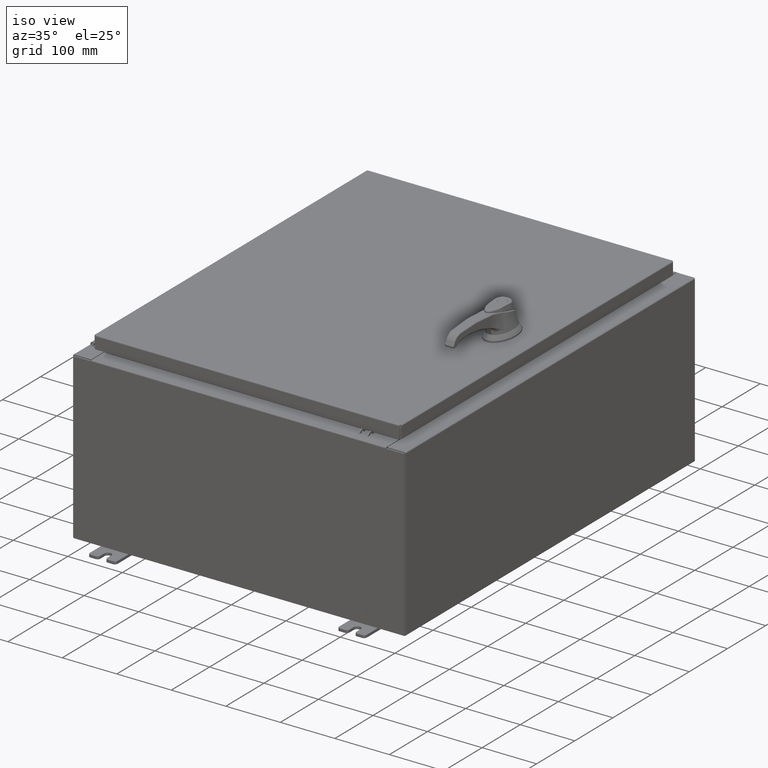
[diagram: clean part render]
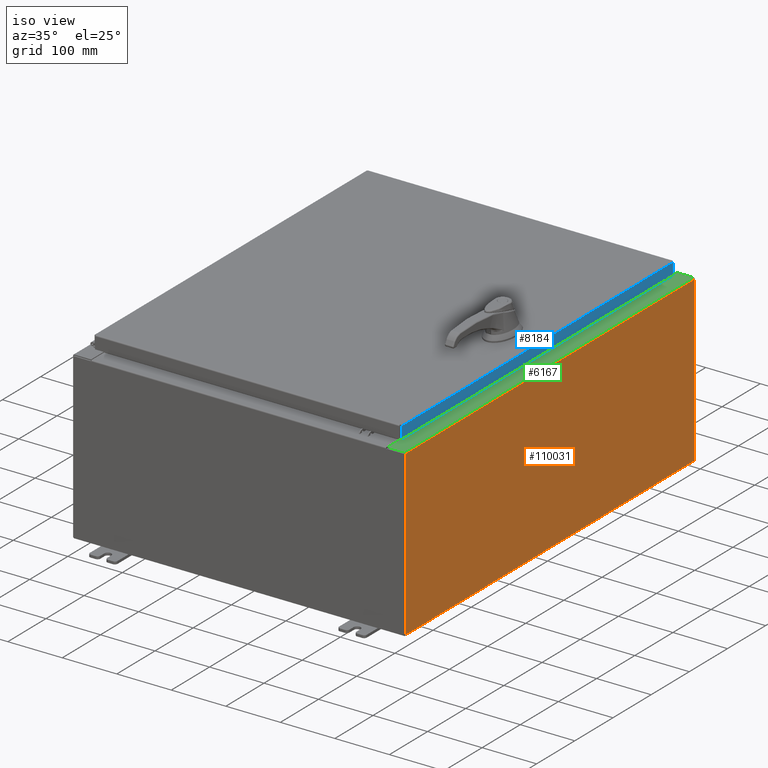
[diagram: same view with three faces highlighted in distinct colors, each labeled with its STEP entity id]
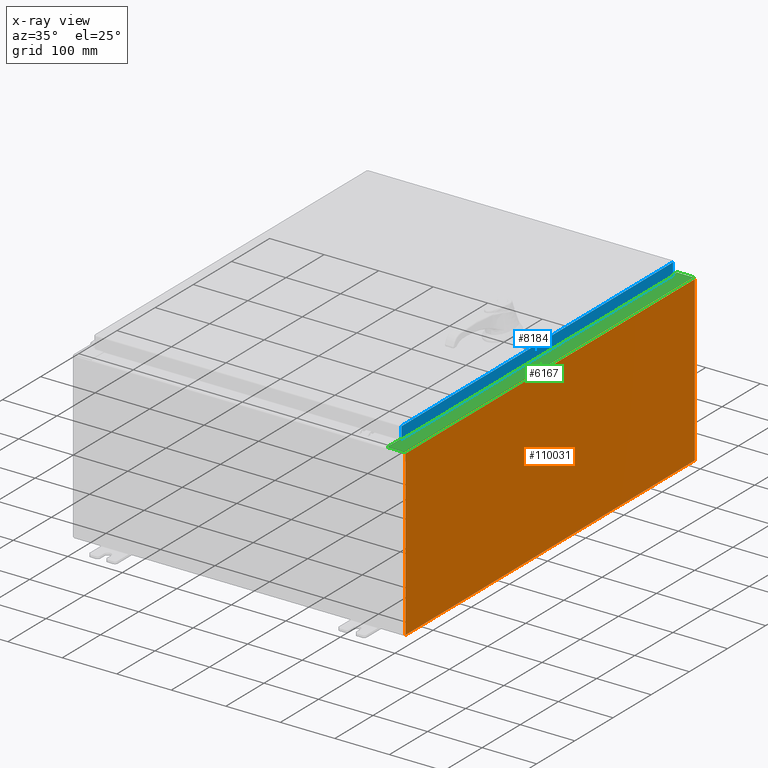
[diagram: x-ray of the same camera — body ghosted, the three highlighted faces saturated]
A machine part, iso view with three faces highlighted in distinct colors.
The next image is the same camera in x-ray (body ghosted, the three faces saturated) — at least one of them is partly hidden behind the body in this view.
Their STEP definitions:

[orange] entity #110031 — the highlighted planar face has unit normal (-1, 0, 0).
#7068 = VERTEX_POINT ( 'NONE', #77897 ) ;
#10181 = LINE ( 'NONE', #26556, #97931 ) ;
#17967 = CARTESIAN_POINT ( 'NONE',  ( 12.00000000000003700, -14.92529999999999800, 11.83760000000000000 ) ) ;
#20371 = PLANE ( 'NONE',  #89198 ) ;
#26556 = CARTESIAN_POINT ( 'NONE',  ( 12.00000000000003700, 14.92529999999999800, 11.83760000000000000 ) ) ;
#29485 = LINE ( 'NONE', #53118, #66294 ) ;
#30727 = VERTEX_POINT ( 'NONE', #17967 ) ;
#37150 = DIRECTION ( 'NONE',  ( 2.549319440810500300E-031, -1.000000000000000000, 7.321388497823869400E-017 ) ) ;
#38587 = DIRECTION ( 'NONE',  ( 3.482016343714355100E-015, 0.0000000000000000000, 1.000000000000000000 ) ) ;
#41855 = LINE ( 'NONE', #91934, #111129 ) ;
#46221 = ORIENTED_EDGE ( 'NONE', *, *, #92440, .F. ) ;
#53118 = CARTESIAN_POINT ( 'NONE',  ( 11.99999999999999600, -14.92530000000000000, -3.930973933138173100E-014 ) ) ;
#53308 = VERTEX_POINT ( 'NONE', #79605 ) ;
#65486 = CARTESIAN_POINT ( 'NONE',  ( 11.99999999999999600, 0.0000000000000000000, -4.204500978058383300E-014 ) ) ;
#66294 = VECTOR ( 'NONE', #107282, 39.37007874015748100 ) ;
#66811 = EDGE_LOOP ( 'NONE', ( #71449, #113125, #46221, #80324 ) ) ;
#70684 = LINE ( 'NONE', #91320, #91894 ) ;
#71449 = ORIENTED_EDGE ( 'NONE', *, *, #100134, .T. ) ;
#74131 = DIRECTION ( 'NONE',  ( 3.482016343714355500E-015, -1.832640180902292400E-016, 1.000000000000000000 ) ) ;
#77897 = CARTESIAN_POINT ( 'NONE',  ( 12.00000000000003700, 14.92529999999999800, 11.83760000000000000 ) ) ;
#79605 = CARTESIAN_POINT ( 'NONE',  ( 11.99999999999999600, 14.92529999999999800, 0.01299999999999766100 ) ) ;
#80324 = ORIENTED_EDGE ( 'NONE', *, *, #84439, .T. ) ;
#84439 = EDGE_CURVE ( 'NONE', #53308, #7068, #41855, .T. ) ;
#86559 = FACE_OUTER_BOUND ( 'NONE', #66811, .T. ) ;
#89198 = AXIS2_PLACEMENT_3D ( 'NONE', #65486, #92759, #38587 ) ;
#91320 = CARTESIAN_POINT ( 'NONE',  ( 11.99999999999999600, -14.92529999999999800, 0.01299999999999984700 ) ) ;
#91894 = VECTOR ( 'NONE', #37150, 39.37007874015748100 ) ;
#91934 = CARTESIAN_POINT ( 'NONE',  ( 11.99999999999999600, 14.92530000000000000, -3.930973933138173100E-014 ) ) ;
#92440 = EDGE_CURVE ( 'NONE', #53308, #107629, #70684, .T. ) ;
#92759 = DIRECTION ( 'NONE',  ( -1.000000000000000000, 0.0000000000000000000, 3.482016343714355100E-015 ) ) ;
#93806 = EDGE_CURVE ( 'NONE', #30727, #107629, #29485, .T. ) ;
#97931 = VECTOR ( 'NONE', #116342, 39.37007874015748100 ) ;
#100134 = EDGE_CURVE ( 'NONE', #7068, #30727, #10181, .T. ) ;
#107282 = DIRECTION ( 'NONE',  ( -3.482016343714355500E-015, -1.832640180902292400E-016, -1.000000000000000000 ) ) ;
#107629 = VERTEX_POINT ( 'NONE', #109875 ) ;
#109875 = CARTESIAN_POINT ( 'NONE',  ( 11.99999999999999600, -14.92530000000000000, 0.01299999999999997900 ) ) ;
#110031 = ADVANCED_FACE ( 'NONE', ( #86559 ), #20371, .F. ) ;
#111129 = VECTOR ( 'NONE', #74131, 39.37007874015748100 ) ;
#113125 = ORIENTED_EDGE ( 'NONE', *, *, #93806, .T. ) ;
#116342 = DIRECTION ( 'NONE',  ( -0.0000000000000000000, -1.000000000000000000, -0.0000000000000000000 ) ) ;

[blue] entity #8184 — the highlighted planar face has unit normal (1, 0, 0).
#1176 = VERTEX_POINT ( 'NONE', #20045 ) ;
#7038 = DIRECTION ( 'NONE',  ( 0.0000000000000000000, -1.000000000000000000, 0.0000000000000000000 ) ) ;
#7800 = VECTOR ( 'NONE', #7038, 39.37007874015748100 ) ;
#8184 = ADVANCED_FACE ( 'NONE', ( #33921 ), #23648, .T. ) ;
#11466 = LINE ( 'NONE', #72371, #80865 ) ;
#12006 = CARTESIAN_POINT ( 'NONE',  ( 11.07800000000000300, 14.00515786437627200, -0.9376999999999997600 ) ) ;
#16000 = VERTEX_POINT ( 'NONE', #12006 ) ;
#18151 = CARTESIAN_POINT ( 'NONE',  ( 11.07799999999999900, -14.00515786437626900, -0.08770000000000008300 ) ) ;
#20045 = CARTESIAN_POINT ( 'NONE',  ( 11.07800000000000300, -14.00515786437626200, -0.9376999999999997600 ) ) ;
#22073 = DIRECTION ( 'NONE',  ( -2.532419924601866100E-015, -6.982962677686265900E-015, 1.000000000000000000 ) ) ;
#23648 = PLANE ( 'NONE',  #93482 ) ;
#27661 = CARTESIAN_POINT ( 'NONE',  ( 11.07799999999999900, 14.00515786437626900, 1.261124562427948200E-013 ) ) ;
#33921 = FACE_OUTER_BOUND ( 'NONE', #64996, .T. ) ;
#33960 = ORIENTED_EDGE ( 'NONE', *, *, #42263, .T. ) ;
#42228 = EDGE_CURVE ( 'NONE', #83949, #80239, #11466, .T. ) ;
#42263 = EDGE_CURVE ( 'NONE', #16000, #83949, #78050, .T. ) ;
#42622 = DIRECTION ( 'NONE',  ( 2.532419924601866100E-015, 0.0000000000000000000, -1.000000000000000000 ) ) ;
#43232 = LINE ( 'NONE', #97197, #7800 ) ;
#45894 = DIRECTION ( 'NONE',  ( -2.532419924601866100E-015, -6.982962677686265900E-015, 1.000000000000000000 ) ) ;
#48660 = EDGE_CURVE ( 'NONE', #1176, #80239, #116257, .T. ) ;
#57231 = EDGE_CURVE ( 'NONE', #16000, #1176, #43232, .T. ) ;
#60083 = CARTESIAN_POINT ( 'NONE',  ( 11.07799999999999900, 0.0000000000000000000, 2.831496158075105700E-014 ) ) ;
#64996 = EDGE_LOOP ( 'NONE', ( #102688, #78267, #33960, #68619 ) ) ;
#67199 = CARTESIAN_POINT ( 'NONE',  ( 11.07799999999999900, -14.00515786437626900, -0.07469999999999980800 ) ) ;
#68619 = ORIENTED_EDGE ( 'NONE', *, *, #42228, .T. ) ;
#72371 = CARTESIAN_POINT ( 'NONE',  ( 11.07799999999999900, 0.0000000000000000000, -0.08770000000000008300 ) ) ;
#78050 = LINE ( 'NONE', #27661, #96428 ) ;
#78267 = ORIENTED_EDGE ( 'NONE', *, *, #57231, .F. ) ;
#80239 = VERTEX_POINT ( 'NONE', #18151 ) ;
#80865 = VECTOR ( 'NONE', #108343, 39.37007874015748100 ) ;
#83949 = VERTEX_POINT ( 'NONE', #111413 ) ;
#89364 = VECTOR ( 'NONE', #22073, 39.37007874015748100 ) ;
#93482 = AXIS2_PLACEMENT_3D ( 'NONE', #60083, #96801, #42622 ) ;
#96428 = VECTOR ( 'NONE', #45894, 39.37007874015748100 ) ;
#96801 = DIRECTION ( 'NONE',  ( 1.000000000000000000, 0.0000000000000000000, 2.532419924601866100E-015 ) ) ;
#97197 = CARTESIAN_POINT ( 'NONE',  ( 11.07800000000000300, -14.09399999999999900, -0.9376999999999997600 ) ) ;
#102688 = ORIENTED_EDGE ( 'NONE', *, *, #48660, .F. ) ;
#108343 = DIRECTION ( 'NONE',  ( 0.0000000000000000000, -1.000000000000000000, 0.0000000000000000000 ) ) ;
#111413 = CARTESIAN_POINT ( 'NONE',  ( 11.07799999999999900, 14.00515786437626500, -0.08770000000000008300 ) ) ;
#116257 = LINE ( 'NONE', #67199, #89364 ) ;

[green] entity #6167 — the highlighted planar face has unit normal (-0, 0, -1).
#511 = DIRECTION ( 'NONE',  ( -1.000000000000000000, 0.0000000000000000000, 7.132762385546384700E-015 ) ) ;
#848 = VERTEX_POINT ( 'NONE', #48017 ) ;
#1057 = CARTESIAN_POINT ( 'NONE',  ( 10.75005000000004100, -13.61242500000000000, 11.92530000000000900 ) ) ;
#1529 = VERTEX_POINT ( 'NONE', #53513 ) ;
#1533 = CARTESIAN_POINT ( 'NONE',  ( 10.75005000000004100, 13.63109999999999800, 11.92530000000000900 ) ) ;
#2048 = CARTESIAN_POINT ( 'NONE',  ( 10.75005000000004100, -13.59375000000000000, 11.92530000000000900 ) ) ;
#3513 = ORIENTED_EDGE ( 'NONE', *, *, #47617, .F. ) ;
#4571 = DIRECTION ( 'NONE',  ( -1.000000000000000000, 0.0000000000000000000, 0.0000000000000000000 ) ) ;
#4607 = VECTOR ( 'NONE', #65346, 39.37007874015748100 ) ;
#6167 = ADVANCED_FACE ( 'NONE', ( #83689 ), #97452, .F. ) ;
#6205 = CIRCLE ( 'NONE', #85027, 0.01867499999999949400 ) ;
#6564 = DIRECTION ( 'NONE',  ( 7.132762385546384700E-015, 0.0000000000000000000, 1.000000000000000000 ) ) ;
#8873 = EDGE_CURVE ( 'NONE', #77540, #1529, #21047, .T. ) ;
#9940 = VERTEX_POINT ( 'NONE', #85435 ) ;
#9970 = LINE ( 'NONE', #98650, #79335 ) ;
#10142 = DIRECTION ( 'NONE',  ( 1.000000000000000000, 0.0000000000000000000, 0.0000000000000000000 ) ) ;
#11808 = VECTOR ( 'NONE', #42200, 39.37007874015748100 ) ;
#12096 = VERTEX_POINT ( 'NONE', #68909 ) ;
#15985 = CARTESIAN_POINT ( 'NONE',  ( 8.532114493236847900E-014, 0.0000000000000000000, 11.92530000000008500 ) ) ;
#21047 = LINE ( 'NONE', #54726, #90397 ) ;
#21655 = ORIENTED_EDGE ( 'NONE', *, *, #8873, .T. ) ;
#24327 = VECTOR ( 'NONE', #4571, 39.37007874015748100 ) ;
#25795 = LINE ( 'NONE', #2048, #4607 ) ;
#26208 = LINE ( 'NONE', #38023, #71497 ) ;
#26793 = VECTOR ( 'NONE', #91939, 39.37007874015748100 ) ;
#28640 = CARTESIAN_POINT ( 'NONE',  ( 10.69970000000003900, 0.0000000000000000000, 11.92530000000000900 ) ) ;
#28955 = CARTESIAN_POINT ( 'NONE',  ( 10.69970000000003900, 13.63109999999999800, 11.92530000000000900 ) ) ;
#29028 = EDGE_CURVE ( 'NONE', #1529, #29863, #59718, .T. ) ;
#29280 = ORIENTED_EDGE ( 'NONE', *, *, #103119, .T. ) ;
#29863 = VERTEX_POINT ( 'NONE', #28955 ) ;
#32043 = CARTESIAN_POINT ( 'NONE',  ( 8.532114493236847900E-014, -14.92529999999999800, 11.92530000000008500 ) ) ;
#33122 = CARTESIAN_POINT ( 'NONE',  ( 10.71270000000004100, -13.59375000000000000, 11.92530000000000900 ) ) ;
#33419 = EDGE_LOOP ( 'NONE', ( #34737, #29280, #96355, #63887, #21655, #67041, #48223, #38080, #90974, #79321, #3513, #34554 ) ) ;
#34554 = ORIENTED_EDGE ( 'NONE', *, *, #60112, .F. ) ;
#34737 = ORIENTED_EDGE ( 'NONE', *, *, #96728, .F. ) ;
#35604 = VECTOR ( 'NONE', #81425, 39.37007874015748100 ) ;
#35766 = AXIS2_PLACEMENT_3D ( 'NONE', #15985, #43297, #106544 ) ;
#38023 = CARTESIAN_POINT ( 'NONE',  ( 10.69970000000003900, -13.63109999999999800, 11.92530000000000900 ) ) ;
#38080 = ORIENTED_EDGE ( 'NONE', *, *, #39734, .F. ) ;
#39650 = EDGE_CURVE ( 'NONE', #12096, #74123, #81195, .T. ) ;
#39734 = EDGE_CURVE ( 'NONE', #848, #92555, #51483, .T. ) ;
#40073 = EDGE_CURVE ( 'NONE', #74123, #848, #79706, .T. ) ;
#41129 = CARTESIAN_POINT ( 'NONE',  ( 10.75005000000004100, -13.59375000000000000, 11.92530000000000900 ) ) ;
#41545 = EDGE_CURVE ( 'NONE', #92555, #29863, #69640, .T. ) ;
#42200 = DIRECTION ( 'NONE',  ( -0.0000000000000000000, 1.000000000000000000, -0.0000000000000000000 ) ) ;
#43297 = DIRECTION ( 'NONE',  ( -7.132762385546384700E-015, 0.0000000000000000000, -1.000000000000000000 ) ) ;
#44509 = DIRECTION ( 'NONE',  ( -0.0000000000000000000, -1.000000000000000000, -0.0000000000000000000 ) ) ;
#45456 = CARTESIAN_POINT ( 'NONE',  ( 10.69970000000003900, 0.0000000000000000000, 11.92530000000000900 ) ) ;
#47617 = EDGE_CURVE ( 'NONE', #57082, #12096, #25795, .T. ) ;
#48017 = CARTESIAN_POINT ( 'NONE',  ( 10.75005000000004100, 13.59375000000000000, 11.92530000000000900 ) ) ;
#48223 = ORIENTED_EDGE ( 'NONE', *, *, #41545, .F. ) ;
#51483 = CIRCLE ( 'NONE', #52087, 0.01867499999999949400 ) ;
#52087 = AXIS2_PLACEMENT_3D ( 'NONE', #60789, #6564, #69864 ) ;
#53513 = CARTESIAN_POINT ( 'NONE',  ( 10.69970000000003900, 14.92529999999999800, 11.92530000000000900 ) ) ;
#54708 = VECTOR ( 'NONE', #68039, 39.37007874015748100 ) ;
#54726 = CARTESIAN_POINT ( 'NONE',  ( 8.532114493236847900E-014, 14.92529999999999800, 11.92530000000008500 ) ) ;
#55668 = VECTOR ( 'NONE', #65442, 39.37007874015748100 ) ;
#56188 = CARTESIAN_POINT ( 'NONE',  ( 10.69970000000003900, -14.92529999999999800, 11.92530000000000900 ) ) ;
#57082 = VERTEX_POINT ( 'NONE', #41129 ) ;
#57481 = VERTEX_POINT ( 'NONE', #100293 ) ;
#59718 = LINE ( 'NONE', #45456, #35604 ) ;
#60112 = EDGE_CURVE ( 'NONE', #74429, #57082, #6205, .T. ) ;
#60789 = CARTESIAN_POINT ( 'NONE',  ( 10.75005000000004100, 13.61242500000000000, 11.92530000000000900 ) ) ;
#63887 = ORIENTED_EDGE ( 'NONE', *, *, #101766, .F. ) ;
#64382 = DIRECTION ( 'NONE',  ( 7.132762385546384700E-015, 0.0000000000000000000, 1.000000000000000000 ) ) ;
#65346 = DIRECTION ( 'NONE',  ( -1.000000000000000000, 0.0000000000000000000, 0.0000000000000000000 ) ) ;
#65442 = DIRECTION ( 'NONE',  ( 1.000000000000000000, 0.0000000000000000000, 0.0000000000000000000 ) ) ;
#67041 = ORIENTED_EDGE ( 'NONE', *, *, #29028, .T. ) ;
#67881 = CARTESIAN_POINT ( 'NONE',  ( 10.75005000000004100, 13.63109999999999800, 11.92530000000000900 ) ) ;
#68039 = DIRECTION ( 'NONE',  ( 1.000000000000000000, 0.0000000000000000000, -7.132762385546384700E-015 ) ) ;
#68909 = CARTESIAN_POINT ( 'NONE',  ( 10.71270000000004100, -13.59375000000000000, 11.92530000000000900 ) ) ;
#69640 = LINE ( 'NONE', #67881, #24327 ) ;
#69864 = DIRECTION ( 'NONE',  ( 1.000000000000000000, 0.0000000000000000000, 0.0000000000000000000 ) ) ;
#70789 = CARTESIAN_POINT ( 'NONE',  ( 10.75005000000004100, -13.63109999999999800, 11.92530000000000900 ) ) ;
#71265 = CARTESIAN_POINT ( 'NONE',  ( 10.71270000000004100, 13.59375000000000000, 11.92530000000000900 ) ) ;
#71497 = VECTOR ( 'NONE', #101244, 39.37007874015748100 ) ;
#74123 = VERTEX_POINT ( 'NONE', #71265 ) ;
#74429 = VERTEX_POINT ( 'NONE', #70789 ) ;
#74956 = LINE ( 'NONE', #28640, #26793 ) ;
#77540 = VERTEX_POINT ( 'NONE', #117282 ) ;
#78755 = LINE ( 'NONE', #32043, #54708 ) ;
#79321 = ORIENTED_EDGE ( 'NONE', *, *, #39650, .F. ) ;
#79335 = VECTOR ( 'NONE', #44509, 39.37007874015748100 ) ;
#79706 = LINE ( 'NONE', #92325, #55668 ) ;
#81195 = LINE ( 'NONE', #33122, #11808 ) ;
#81425 = DIRECTION ( 'NONE',  ( 0.0000000000000000000, -1.000000000000000000, 0.0000000000000000000 ) ) ;
#83419 = VERTEX_POINT ( 'NONE', #56188 ) ;
#83689 = FACE_OUTER_BOUND ( 'NONE', #33419, .T. ) ;
#85027 = AXIS2_PLACEMENT_3D ( 'NONE', #1057, #64382, #10142 ) ;
#85435 = CARTESIAN_POINT ( 'NONE',  ( 11.91230000000003700, -14.92529999999999800, 11.92530000000000000 ) ) ;
#90397 = VECTOR ( 'NONE', #511, 39.37007874015748100 ) ;
#90974 = ORIENTED_EDGE ( 'NONE', *, *, #40073, .F. ) ;
#91939 = DIRECTION ( 'NONE',  ( 0.0000000000000000000, -1.000000000000000000, 0.0000000000000000000 ) ) ;
#92325 = CARTESIAN_POINT ( 'NONE',  ( 10.71270000000004100, 13.59375000000000000, 11.92530000000000900 ) ) ;
#92555 = VERTEX_POINT ( 'NONE', #1533 ) ;
#95413 = EDGE_CURVE ( 'NONE', #83419, #9940, #78755, .T. ) ;
#96355 = ORIENTED_EDGE ( 'NONE', *, *, #95413, .T. ) ;
#96728 = EDGE_CURVE ( 'NONE', #57481, #74429, #26208, .T. ) ;
#97452 = PLANE ( 'NONE',  #35766 ) ;
#98650 = CARTESIAN_POINT ( 'NONE',  ( 11.91230000000003700, -14.92529999999999800, 11.92530000000000000 ) ) ;
#100293 = CARTESIAN_POINT ( 'NONE',  ( 10.69970000000003900, -13.63109999999999800, 11.92530000000000900 ) ) ;
#101244 = DIRECTION ( 'NONE',  ( 1.000000000000000000, 0.0000000000000000000, 0.0000000000000000000 ) ) ;
#101766 = EDGE_CURVE ( 'NONE', #77540, #9940, #9970, .T. ) ;
#103119 = EDGE_CURVE ( 'NONE', #57481, #83419, #74956, .T. ) ;
#106544 = DIRECTION ( 'NONE',  ( -1.000000000000000000, 0.0000000000000000000, 7.132762385546384700E-015 ) ) ;
#117282 = CARTESIAN_POINT ( 'NONE',  ( 11.91230000000003700, 14.92529999999999800, 11.92530000000000000 ) ) ;